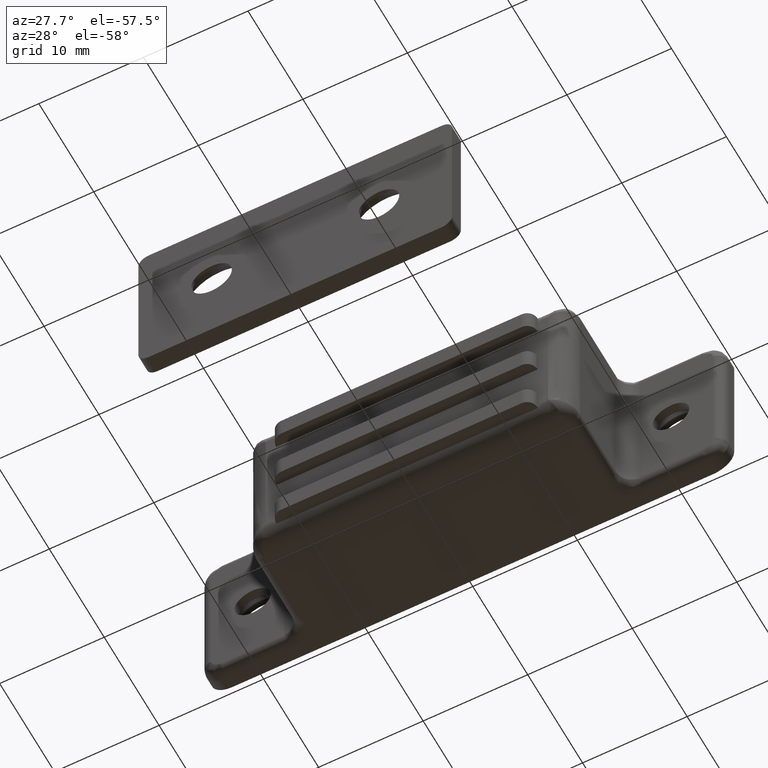
[diagram: clean part render]
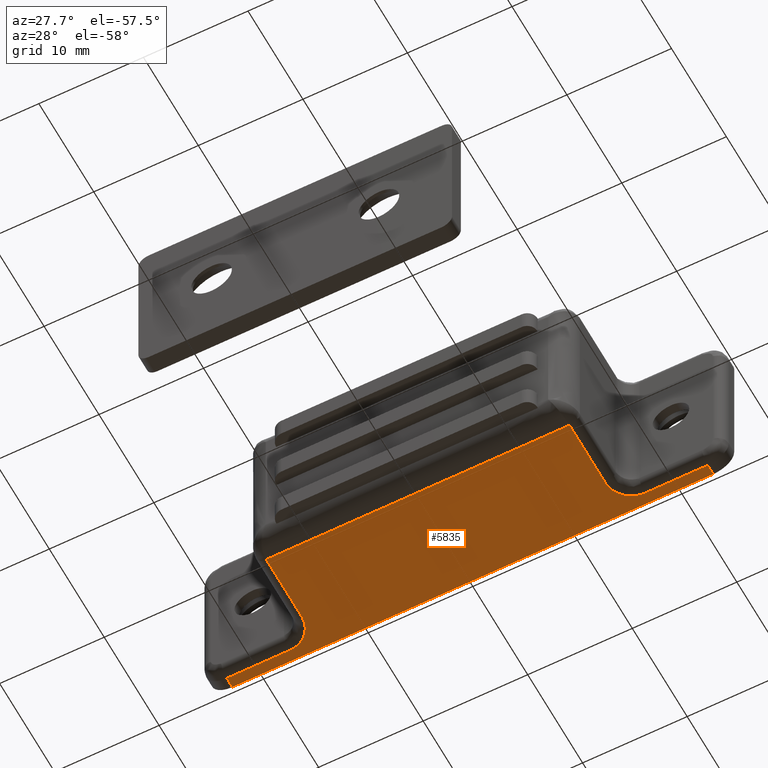
[diagram: same view with one face highlighted and labeled with its STEP entity id]
A machine part, auxiliary view. The second image highlights one B-rep face of the part: STEP entity #5835.
In plain terms, the highlighted face is a freeform B-spline surface patch.
Its self-contained STEP definition (entity closure, byte-faithful):
#4088=CARTESIAN_POINT('',(23.0,-1.0,-8.500000000000000));
#4089=VERTEX_POINT('',#4088);
#4210=CARTESIAN_POINT('',(17.0,-1.0,-8.500000000000000));
#4211=VERTEX_POINT('',#4210);
#4225=CARTESIAN_POINT('',(23.0,-1.0,-8.500000000000000));
#4226=CARTESIAN_POINT('',(17.0,-1.0,-8.500000000000000));
#4227=QUASI_UNIFORM_CURVE('',1,(#4225,#4226),.UNSPECIFIED.,.F.,.U.);
#4228=EDGE_CURVE('',#4089,#4211,#4227,.T.);
#4338=CARTESIAN_POINT('',(14.500000000000000,-3.500000000000000,-8.500000000000000));
#4339=VERTEX_POINT('',#4338);
#4353=CARTESIAN_POINT('',(17.0,-1.0,-8.500000000000000));
#4354=CARTESIAN_POINT('',(14.500000000000000,-1.0,-8.500000000000002));
#4355=CARTESIAN_POINT('',(14.500000000000000,-3.500000000000000,-8.500000000000000));
#4363=(BOUNDED_CURVE()B_SPLINE_CURVE(2,(#4353,#4354,#4355),.UNSPECIFIED.,.F.,.U.)CURVE()GEOMETRIC_REPRESENTATION_ITEM()QUASI_UNIFORM_CURVE()RATIONAL_B_SPLINE_CURVE((1.0,0.707106781186548,1.0))REPRESENTATION_ITEM(''));
#4364=EDGE_CURVE('',#4211,#4339,#4363,.T.);
#4444=CARTESIAN_POINT('',(14.500000000000000,-10.0,-8.500000000000000));
#4445=VERTEX_POINT('',#4444);
#4459=CARTESIAN_POINT('',(14.500000000000000,-3.500000000000000,-8.500000000000000));
#4460=CARTESIAN_POINT('',(14.500000000000000,-10.0,-8.500000000000000));
#4461=QUASI_UNIFORM_CURVE('',1,(#4459,#4460),.UNSPECIFIED.,.F.,.U.);
#4462=EDGE_CURVE('',#4339,#4445,#4461,.T.);
#5166=CARTESIAN_POINT('',(-23.000004000000001,-1.0,-8.500000000000000));
#5167=VERTEX_POINT('',#5166);
#5227=CARTESIAN_POINT('',(-17.000004000000001,-1.0,-8.500000000000000));
#5228=VERTEX_POINT('',#5227);
#5250=CARTESIAN_POINT('',(-17.000004000000001,-1.0,-8.500000000000000));
#5251=CARTESIAN_POINT('',(-23.000004000000001,-1.0,-8.500000000000000));
#5252=QUASI_UNIFORM_CURVE('',1,(#5250,#5251),.UNSPECIFIED.,.F.,.U.);
#5253=EDGE_CURVE('',#5228,#5167,#5252,.T.);
#5281=CARTESIAN_POINT('',(-14.500004000000001,-3.500000000000000,-8.500000000000000));
#5282=VERTEX_POINT('',#5281);
#5312=CARTESIAN_POINT('',(-14.500004000000001,-3.500000000000000,-8.500000000000000));
#5313=CARTESIAN_POINT('',(-14.500003999999993,-1.0,-8.500000000000002));
#5314=CARTESIAN_POINT('',(-17.000004000000001,-1.0,-8.500000000000000));
#5322=(BOUNDED_CURVE()B_SPLINE_CURVE(2,(#5312,#5313,#5314),.UNSPECIFIED.,.F.,.U.)CURVE()GEOMETRIC_REPRESENTATION_ITEM()QUASI_UNIFORM_CURVE()RATIONAL_B_SPLINE_CURVE((1.0,0.707106781186548,1.0))REPRESENTATION_ITEM(''));
#5323=EDGE_CURVE('',#5282,#5228,#5322,.T.);
#5342=CARTESIAN_POINT('',(-14.500004000000001,-10.0,-8.500000000000000));
#5343=VERTEX_POINT('',#5342);
#5365=CARTESIAN_POINT('',(-14.500004000000001,-10.0,-8.500000000000000));
#5366=CARTESIAN_POINT('',(-14.500004000000001,-3.500000000000000,-8.500000000000000));
#5367=QUASI_UNIFORM_CURVE('',1,(#5365,#5366),.UNSPECIFIED.,.F.,.U.);
#5368=EDGE_CURVE('',#5343,#5282,#5367,.T.);
#5505=CARTESIAN_POINT('',(14.500000000000000,-10.0,-8.500000000000000));
#5506=CARTESIAN_POINT('',(-14.500004000000001,-10.0,-8.500000000000000));
#5507=QUASI_UNIFORM_CURVE('',1,(#5505,#5506),.UNSPECIFIED.,.F.,.U.);
#5508=EDGE_CURVE('',#4445,#5343,#5507,.T.);
#5564=CARTESIAN_POINT('',(-23.000004000000001,0.0,-8.500000000000000));
#5565=VERTEX_POINT('',#5564);
#5566=CARTESIAN_POINT('',(-23.000004000000001,-1.0,-8.500000000000000));
#5567=CARTESIAN_POINT('',(-23.000004000000001,0.0,-8.500000000000000));
#5568=QUASI_UNIFORM_CURVE('',1,(#5566,#5567),.UNSPECIFIED.,.F.,.U.);
#5569=EDGE_CURVE('',#5167,#5565,#5568,.T.);
#5707=CARTESIAN_POINT('',(23.0,0.0,-8.500000000000000));
#5708=VERTEX_POINT('',#5707);
#5709=CARTESIAN_POINT('',(23.0,0.0,-8.500000000000000));
#5710=CARTESIAN_POINT('',(23.0,-1.0,-8.500000000000000));
#5711=QUASI_UNIFORM_CURVE('',1,(#5709,#5710),.UNSPECIFIED.,.F.,.U.);
#5712=EDGE_CURVE('',#5708,#4089,#5711,.T.);
#5814=CARTESIAN_POINT('',(-25.297704110643071,0.499499980618060,-8.500000000000000));
#5815=CARTESIAN_POINT('',(25.297701344459330,0.499499980618060,-8.500000000000000));
#5816=CARTESIAN_POINT('',(-25.297704110643071,-10.499500248838959,-8.500000000000000));
#5817=CARTESIAN_POINT('',(25.297701344459330,-10.499500248838959,-8.500000000000000));
#5818=B_SPLINE_SURFACE_WITH_KNOTS('',1,1,((#5814,#5816),(#5815,#5817)),.UNSPECIFIED.,.F.,.F.,.U.,(2,2),(2,2),(0.0,50.595405455102387),(0.0,10.999000229457019),.UNSPECIFIED.);
#5819=ORIENTED_EDGE('',*,*,#5323,.T.);
#5820=ORIENTED_EDGE('',*,*,#5253,.T.);
#5821=ORIENTED_EDGE('',*,*,#5569,.T.);
#5822=CARTESIAN_POINT('',(-23.000004000000001,0.0,-8.500000000000000));
#5823=CARTESIAN_POINT('',(23.0,0.0,-8.500000000000000));
#5824=QUASI_UNIFORM_CURVE('',1,(#5822,#5823),.UNSPECIFIED.,.F.,.U.);
#5825=EDGE_CURVE('',#5565,#5708,#5824,.T.);
#5826=ORIENTED_EDGE('',*,*,#5825,.T.);
#5827=ORIENTED_EDGE('',*,*,#5712,.T.);
#5828=ORIENTED_EDGE('',*,*,#4228,.T.);
#5829=ORIENTED_EDGE('',*,*,#4364,.T.);
#5830=ORIENTED_EDGE('',*,*,#4462,.T.);
#5831=ORIENTED_EDGE('',*,*,#5508,.T.);
#5832=ORIENTED_EDGE('',*,*,#5368,.T.);
#5833=EDGE_LOOP('',(#5819,#5820,#5821,#5826,#5827,#5828,#5829,#5830,#5831,#5832));
#5834=FACE_OUTER_BOUND('',#5833,.T.);
#5835=ADVANCED_FACE('',(#5834),#5818,.T.);